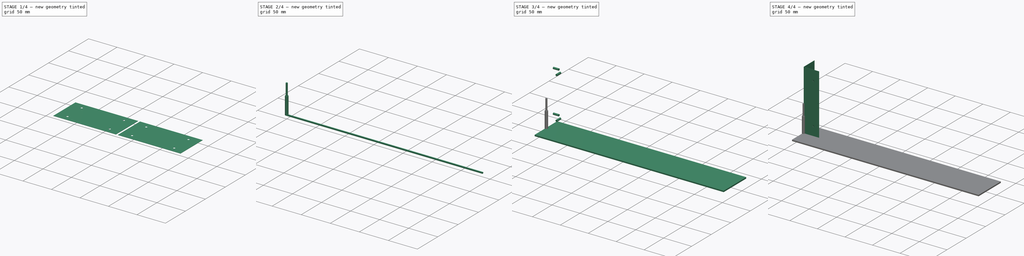
[diagram: build sequence overview — one tinted view per stage of 4, left to right]
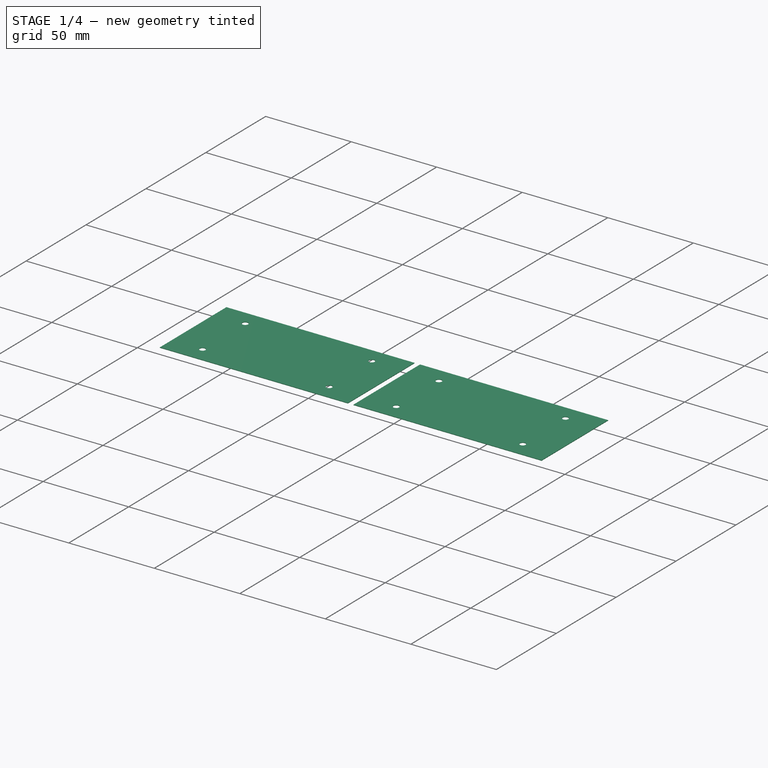
[diagram: stage 1 of 4 — iso view after this stage's code; geometry added in this stage tinted green]
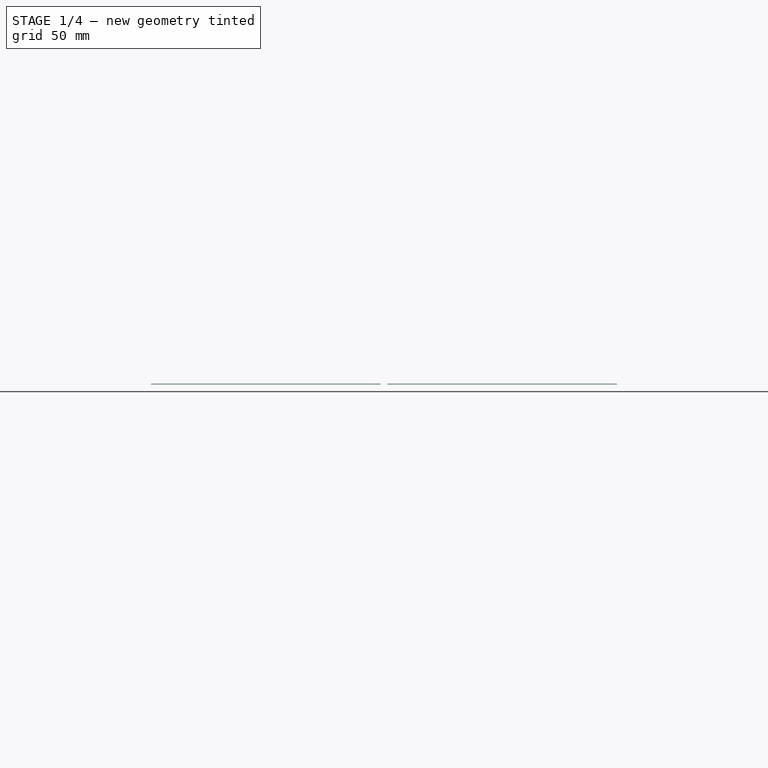
[diagram: stage 1 of 4 — front view after this stage's code; geometry added in this stage tinted green]
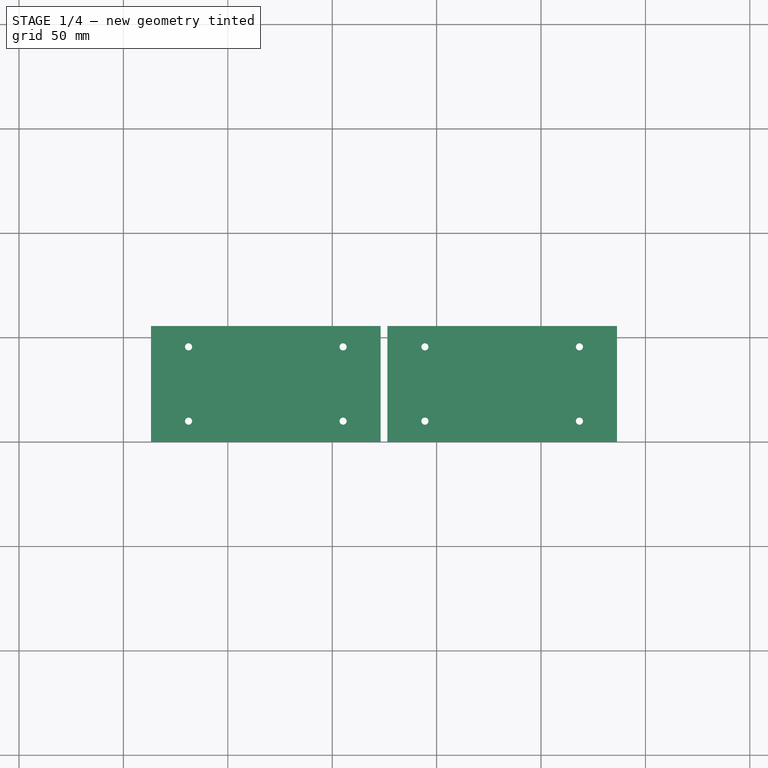
[diagram: stage 1 of 4 — top view after this stage's code; geometry added in this stage tinted green]
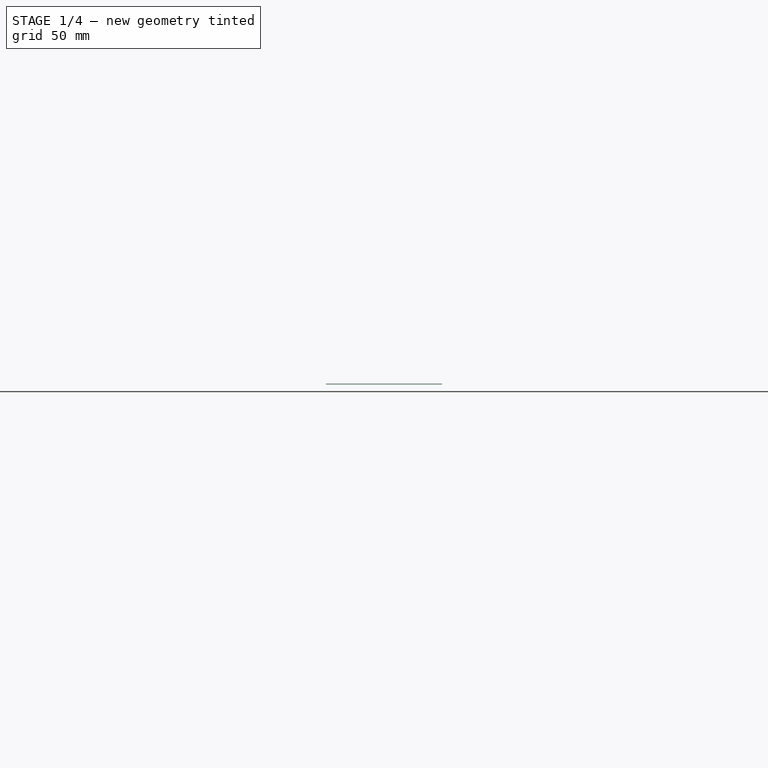
[diagram: stage 1 of 4 — right view after this stage's code; geometry added in this stage tinted green]
FCSTD DOCUMENT  (FreeCAD 0.22R38622 (Git))
Label: stillage_corner
License: All rights reserved
LicenseURL: http://en.wikipedia.org/wiki/All_rights_reserved
objects: Part::FeaturePython×11, Path::FeaturePython×7, App::DocumentObjectGroup×7, Part::Part2DObjectPython×4, Sketcher::SketchObject×2, PartDesign::Body×2, App::FeaturePython×2, PartDesign::SubShapeBinder×1, PartDesign::FeaturePython×1, Part::Cylinder×1, Part::MultiFuse×1, PartDesign::Boolean×1, Part::Feature×1, PartDesign::FeatureBase×1
note: 33 computed .brp shape members not serialized (recipe doc carries the construction recipe); baked Part::Feature solids carry a one-line shape summary decoded from their .brp

FEATURE [Path::FeaturePython] TC__Default_Tool001  label="TC: Default Tool001"  # Path/CAM operation (typed FeaturePython)
  HorizFeed = 35
  HorizRapid = 0
  SpindleDir = 0
  SpindleSpeed = 18000
  Tool = -> ToolBit001
  ToolNumber = 1
  VertFeed = 16.6667
  VertRapid = 0
  expr: HorizRapid = SetupSheet001.HorizRapid
  expr: VertRapid = SetupSheet001.VertRapid
FEATURE [App::DocumentObjectGroup] Tools001
  Group = -> [TC__Default_Tool001]
FEATURE [Part::Feature] Unfold
  Placement = pos=(0,0,0) rot=(0.57735,0.57735,0.57735;2.0944rad)
  shape: bbox 110 x 55.59 x 0.3 mm, 10 faces (baked)
FEATURE [PartDesign::FeatureBase] BaseFeature
  BaseFeature = -> Unfold
  Placement = pos=(0,0,0) rot=(0.57735,0.57735,0.57735;2.0944rad)
  Suppressed = false
  expr: BaseFeature = <<Unfold>>._self
  expr: Placement = .BaseFeature.Placement
FEATURE [Part::FeaturePython] Clone001  label="Model-Body003"  # Draft clone (typed FeaturePython)
  AttacherType = Attacher::AttachEngine3D
  Fuse = false
  Objects = -> [Body002]
  PathResource = Model
  Placement = pos=(113.2,27.5927,-2.4e-15) rot=(0,0,1;0rad)
  Scale = (1,1,1)
FEATURE [Part::FeaturePython] Clone002  label="Model-Body004"  # Draft clone (typed FeaturePython)
  AttacherType = Attacher::AttachEngine3D
  Fuse = false
  Objects = -> [Body002]
  PathResource = Model
  Placement = pos=(226.4,27.5927,-2.4e-15) rot=(0,0,1;0rad)
  Scale = (1,1,1)
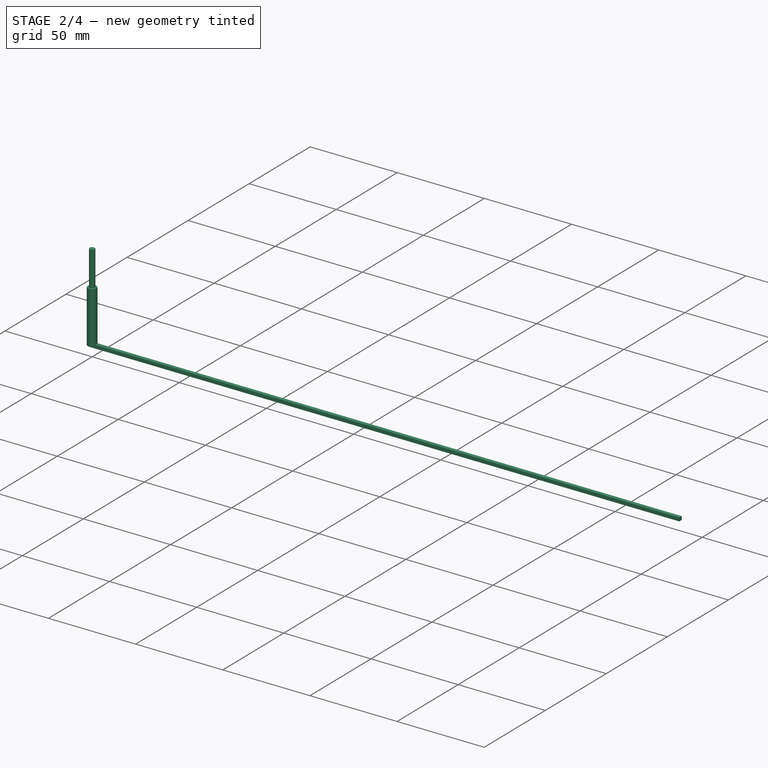
[diagram: stage 2 of 4 — iso view after this stage's code; geometry added in this stage tinted green]
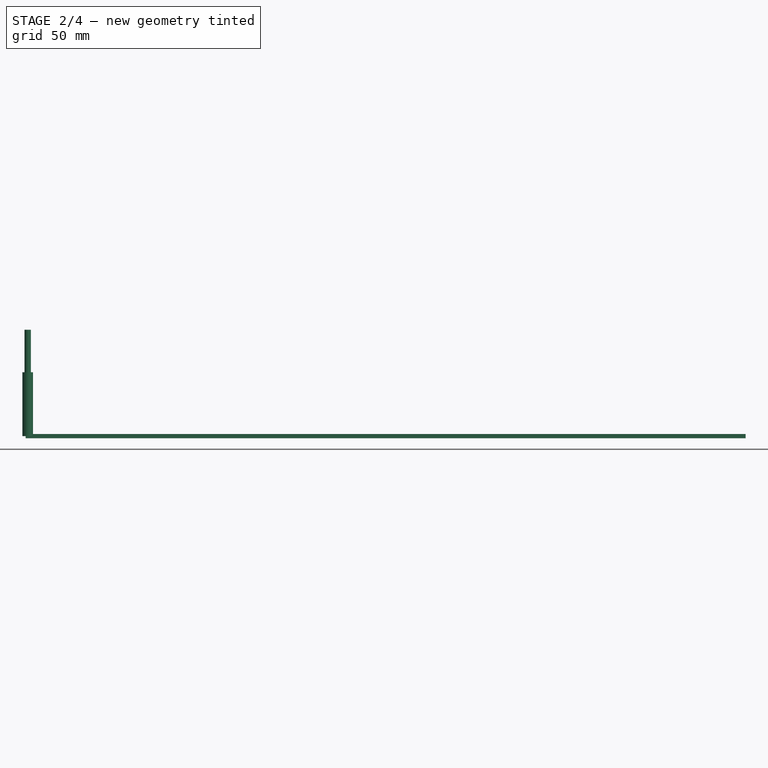
[diagram: stage 2 of 4 — front view after this stage's code; geometry added in this stage tinted green]
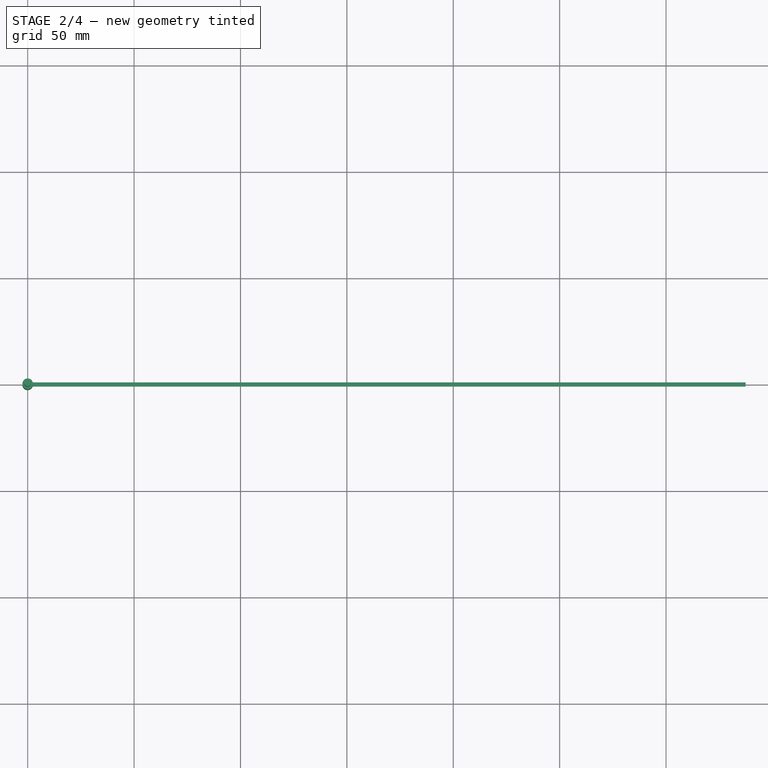
[diagram: stage 2 of 4 — top view after this stage's code; geometry added in this stage tinted green]
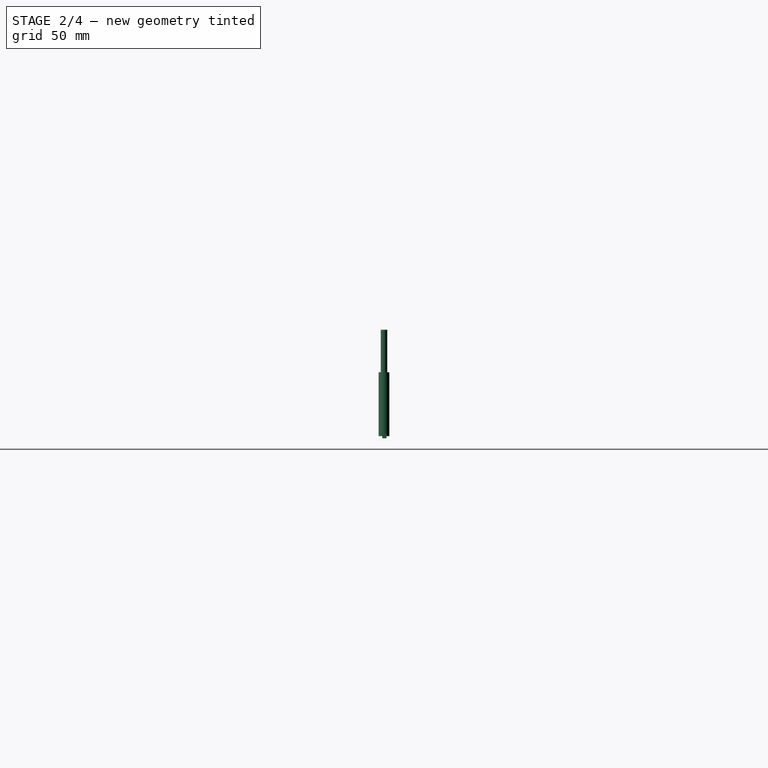
[diagram: stage 2 of 4 — right view after this stage's code; geometry added in this stage tinted green]
FEATURE [Path::FeaturePython] TC__Default_Tool  label="Tool 3,175 1Flute"  # Path/CAM operation (typed FeaturePython)
  HorizFeed = 51.6667
  HorizRapid = 0
  SpindleDir = 0
  SpindleSpeed = 18000
  Tool = -> ToolBit
  ToolNumber = 1
  VertFeed = 16.6667
  VertRapid = 0
  expr: HorizRapid = SetupSheet.HorizRapid
  expr: VertRapid = SetupSheet.VertRapid
FEATURE [App::DocumentObjectGroup] Tools
  Group = -> [TC__Default_Tool]
FEATURE [App::FeaturePython] SetupSheet001  # Path/CAM operation (typed FeaturePython)
  ClearanceHeightExpression = OpStockZMax+SetupSheet001.ClearanceHeightOffset
  ClearanceHeightOffset = 15
  CoolantMode = 0
  CoolantModes = None | Flood | Mist
  FinalDepthExpression = 0,5 mm
  HorizRapid = 0
  SafeHeightExpression = SetupSheet001.SafeHeightOffset
  SafeHeightOffset = 3
  StartDepthExpression = 3 mm
  StepDownExpression = 10 mm
  VertRapid = 0
FEATURE [Part::FeaturePython] ToolBit001  label="Endmill001"  # Path/CAM toolbit (typed FeaturePython)
  BitPropertyNames = Chipload | CuttingEdgeHeight | Diameter | Flutes | Length | Material | ShankDiameter | SpindleDirection
  BitShape = <path>
  Chipload = 0
  CuttingEdgeHeight = 30
  Diameter = 5
  Flutes = 0
  Length = 50
  Material = 0
  ShankDiameter = 3
  ShapeName = endmill
  SpindleDirection = 0
FEATURE [PartDesign::Body] Body002
  AllowCompound = false
  Group = -> [BaseFeature]
  Origin = -> Origin002
  Tip = -> BaseFeature
FEATURE [Part::FeaturePython] Clone  label="Model-Body002"  # Draft clone (typed FeaturePython)
  AttacherType = Attacher::AttachEngine3D
  Fuse = false
  Objects = -> [Body002]
  PathResource = Model
  Placement = pos=(0,27.5927,-2.4e-15) rot=(0,0,1;0rad)
  Scale = (1,1,1)
FEATURE [Path::FeaturePython] Profile  # Path/CAM operation (typed FeaturePython)
  Active = true
  AreaParams:
    Tolerance = 1e-07
    FitArcs = True
    Simplify = False
    CleanDistance = 0.0
    Accuracy = 0.01
    Unit = 1.0
    MinArcPoints = 4
    MaxArcPoints = 100
    ClipperScale = 10000000.0
    Fill = 0
    Coplanar = 0
    Reorient = True
    Outline = False
    Explode = False
    OpenMode = 0
    Deflection = 0.01
    SubjectFill = 0
    ClipFill = 0
    Offset = -1.5875
    ExtraPass = 0
    Stepover = 0.0
    LastStepover = 0.0
    JoinType = 0
    EndType = 0
    MiterLimit = 2.0
    RoundPrecision = 0.0
    PocketMode = 0
    ToolRadius = 1.0
    PocketExtraOffset = 0.0
    PocketStepover = 0.0
    PocketLastStepover = 0.0
    FromCenter = False
    Angle = 45.0
    AngleShift = 0.0
    Shift = 0.0
    Thicken = False
    SectionCount = -1
    Stepdown = 1.0
    SectionOffset = 0.0
    SectionTolerance = 1e-06
    SectionMode = 2
    Project = False
  Base = -> [Clone,Clone001,Clone002]
  ClearanceHeight = 16.3
  CoolantMode = 0
  CycleTime = 00:00:34
  Direction = 1
  FinalDepth = -4e-16
  HandleMultipleFeatures = 0
  JoinType = 0
  MiterLimit = 0.1
  OffsetExtra = 0
  OpFinalDepth = -4e-16
  OpStartDepth = 1.3
  OpStockZMax = 1.3
  OpStockZMin = -1
  OpToolDiameter = 3.175
  PathParams = {'orientation': 1, 'feedrate': 51.66666666666666, 'feedrate_v': 16.66666666666667, 'verbose': True, 'resume_height': 4.300000000000043, 'retraction': 16.300000000000043, 'return_end': True, 'preamble': False, 'start': Vector (318.29624454698995, 45.59255356659663, 16.300000000000043)}
  SafeHeight = 4.3
  Side = 0
  SplitArcs = false
  StartDepth = 1.3
  StartPoint = (0,0,0)
  StepDown = 3.175
  ToolController = -> TC__Default_Tool
  UseComp = true
  UseStartPoint = false
  processCircles = true
  processHoles = false
  processPerimeter = false
  expr: ClearanceHeight = OpStockZMax + SetupSheet.ClearanceHeightOffset
  expr: FinalDepth = OpFinalDepth
  expr: SafeHeight = OpStockZMax + SetupSheet.SafeHeightOffset
  expr: StartDepth = OpStartDepth
  expr: StepDown = OpToolDiameter
FEATURE [Path::FeaturePython] Profile001  # Path/CAM operation (typed FeaturePython)
  Active = true
  AreaParams:
    Tolerance = 1e-07
    FitArcs = True
    Simplify = False
    CleanDistance = 0.0
    Accuracy = 0.01
    Unit = 1.0
    MinArcPoints = 4
    MaxArcPoints = 100
    ClipperScale = 10000000.0
    Fill = 0
    Coplanar = 0
    Reorient = True
    Outline = False
    Explode = False
    OpenMode = 0
    Deflection = 0.01
    SubjectFill = 0
    ClipFill = 0
    Offset = 1.5875
    ExtraPass = 0
    Stepover = 0.0
    LastStepover = 0.0
    JoinType = 0
    EndType = 0
    MiterLimit = 2.0
    RoundPrecision = 0.0
    PocketMode = 0
    ToolRadius = 1.0
    PocketExtraOffset = 0.0
    PocketStepover = 0.0
    PocketLastStepover = 0.0
    FromCenter = False
    Angle = 45.0
    AngleShift = 0.0
    Shift = 0.0
    Thicken = False
    SectionCount = -1
    Stepdown = 1.0
    SectionOffset = 0.0
    SectionTolerance = 1e-06
    SectionMode = 2
    Project = False
  Base = -> [Clone,Clone001,Clone002]
  ClearanceHeight = 16.3
  CoolantMode = 0
  CycleTime = 00:00:31
  Direction = 1
  FinalDepth = -2.8e-15
  HandleMultipleFeatures = 0
  JoinType = 0
  MiterLimit = 0.1
  OffsetExtra = 0
  OpFinalDepth = -2.8e-15
  OpStartDepth = 1.3
  OpStockZMax = 1.3
  OpStockZMin = -1
  OpToolDiameter = 3.175
  PathParams = {'orientation': 0, 'feedrate': 51.66666666666666, 'feedrate_v': 16.66666666666667, 'verbose': True, 'resume_height': 4.300000000000043, 'retraction': 16.300000000000043, 'return_end': True, 'preamble': False, 'start': Vector (111.80334689894978, 56.34736192046903, 16.300000000000043)}
  SafeHeight = 4.3
  Side = 0
  SplitArcs = false
  StartDepth = 1.3
  StartPoint = (0,0,0)
  StepDown = 3.175
  ToolController = -> TC__Default_Tool
  UseComp = true
  UseStartPoint = false
  processCircles = false
  processHoles = false
  processPerimeter = true
  expr: Base = <<Profile>>.Base
  expr: ClearanceHeight = OpStockZMax + SetupSheet.ClearanceHeightOffset
  expr: FinalDepth = OpFinalDepth
  expr: SafeHeight = OpStockZMax + SetupSheet.SafeHeightOffset
  expr: StartDepth = OpStartDepth
  expr: StepDown = OpToolDiameter
FEATURE [App::DocumentObjectGroup] Operations
  Group = -> [Profile,Profile001]
FEATURE [Path::FeaturePython] Job  # Path/CAM operation (typed FeaturePython)
  CycleTime = 00:01:05
  Fixtures = G54
  GeometryTolerance = 0.01
  JobType = 0
  Model = -> Model
  Operations = -> Operations
  OrderOutputBy = 2
  PostProcessor = 22
  PostProcessorArgs = --axis-modal --modal
  PostProcessorOutputFile = <path>/%j-%S.tap
  SetupSheet = -> SetupSheet
  SplitOutput = true
  Stock = -> Stock
  Tools = -> Tools
FEATURE [Sketcher::SketchObject] Unfold_Sketch_bends
  ArcFitTolerance = 1e-06
  FullyConstrained = false
  MakeInternals = false
  sketch-geometry (1):
    g0: LineSegment StartX=110 StartY=0.20365 StartZ=0 EndX=0 EndY=0.20365 EndZ=0
FEATURE [Part::Part2DObjectPython] Clone2D  label="Unfold_Sketch_bends (2D)"  # Draft 2D object (typed FeaturePython)
  Fuse = false
  Objects = -> [Unfold_Sketch_bends]
  Scale = (1,1,1)
  expr: Objects = <<Unfold_Sketch_bends>>._self
FEATURE [Part::Part2DObjectPython] Clone2D001  label="Model-Unfold_Sketch_bends (2D)"  # Draft 2D object (typed FeaturePython)
  Fuse = false
  Objects = -> [Clone2D]
  PathResource = Model
  Placement = pos=(0,27.5927,-2.4e-15) rot=(0,0,1;0rad)
  Scale = (1,1,1)
  expr: Placement = <<Model-Body002>>.Placement
FEATURE [Part::Part2DObjectPython] Clone2D002  label="Model-Unfold_Sketch_bends (2D)001"  # Draft 2D object (typed FeaturePython)
  Fuse = false
  Objects = -> [Clone2D]
  PathResource = Model
  Placement = pos=(113.2,27.5927,-2.4e-15) rot=(0,0,1;0rad)
  Scale = (1,1,1)
  expr: Placement = <<Model-Body003>>.Placement
FEATURE [Part::Part2DObjectPython] Clone2D003  label="Model-Unfold_Sketch_bends (2D)002"  # Draft 2D object (typed FeaturePython)
  Fuse = false
  Objects = -> [Clone2D]
  PathResource = Model
  Placement = pos=(226.4,27.5927,-2.4e-15) rot=(0,0,1;0rad)
  Scale = (1,1,1)
  expr: Placement = <<Model-Body004>>.Placement
FEATURE [App::DocumentObjectGroup] Model001
  Group = -> [Clone2D001,Clone2D002,Clone2D003]
FEATURE [Part::FeaturePython] Stock001  # WARN: FeaturePython — macro-defined, semantics opaque (R4)
  Base = -> Model001
  ExtXneg = 1
  ExtXpos = 1
  ExtYneg = 1
  ExtYpos = 1
  ExtZneg = 1
  ExtZpos = 1
  Placement = pos=(0,0.20365,0) rot=(0,0,1;0rad)
  StockType = FromBase
FEATURE [Path::FeaturePython] Engrave  # Path/CAM operation (typed FeaturePython)
  Active = true
  BaseShapes = -> [Clone2D001,Clone2D002,Clone2D003]
  ClearanceHeight = 15
  CoolantMode = 0
  CycleTime = 00:00:31
  FinalDepth = 0.5
  OpFinalDepth = -5
  OpStartDepth = -2.4e-15
  OpStockZMax = 1
  OpStockZMin = -1
  OpToolDiameter = 5
  SafeHeight = 4
  StartDepth = -2.4e-15
  StartVertex = 0
  StepDown = 5
  ToolController = -> TC__Default_Tool001
  expr: BaseShapes = <<Model001>>.Group
  expr: FinalDepth = 0.5 mm
  expr: SafeHeight = OpStockZMax + SetupSheet001.SafeHeightOffset
  expr: StartDepth = OpStartDepth
  expr: StepDown = OpToolDiameter
FEATURE [App::DocumentObjectGroup] Operations001
  Group = -> [Engrave]
FEATURE [Path::FeaturePython] Job001  # Path/CAM operation (typed FeaturePython)
  CycleTime = 00:00:31
  Fixtures = G54
  GeometryTolerance = 0.01
  JobType = 0
  Model = -> Model001
  Operations = -> Operations001
  OrderOutputBy = 0
  PostProcessor = 22
  PostProcessorArgs = --axis-modal --modal
  PostProcessorOutputFile = <path>/%j.tap
  SetupSheet = -> SetupSheet001
  SplitOutput = false
  Stock = -> Stock001
  Tools = -> Tools001
FEATURE [App::DocumentObjectGroup] Group
  Group = -> [Body002,Clone2D,Unfold,Unfold_Sketch_bends]
note: 4 file-system paths scrubbed to <path> (originals preserved in the JSON sidecar)
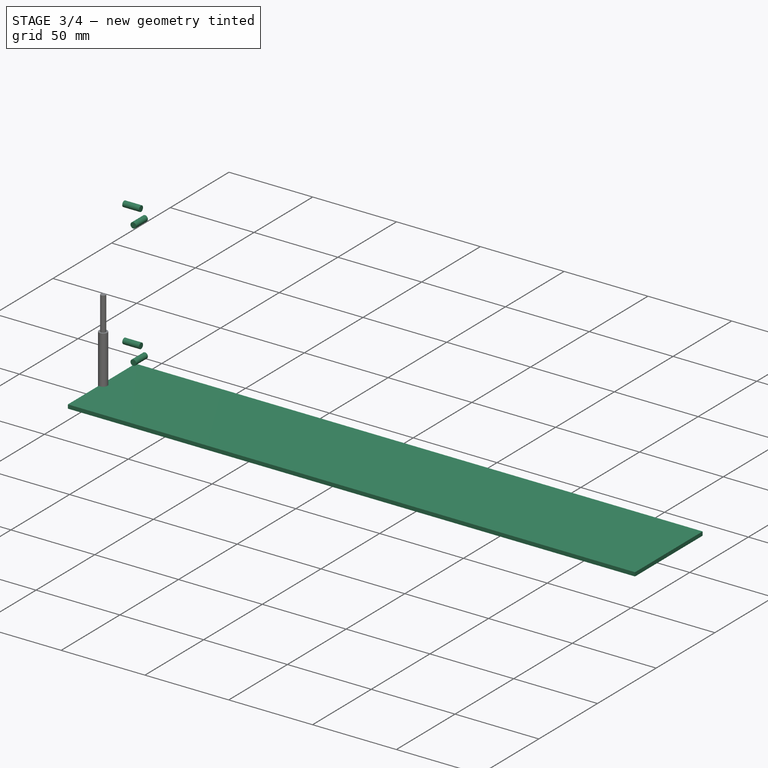
[diagram: stage 3 of 4 — iso view after this stage's code; geometry added in this stage tinted green]
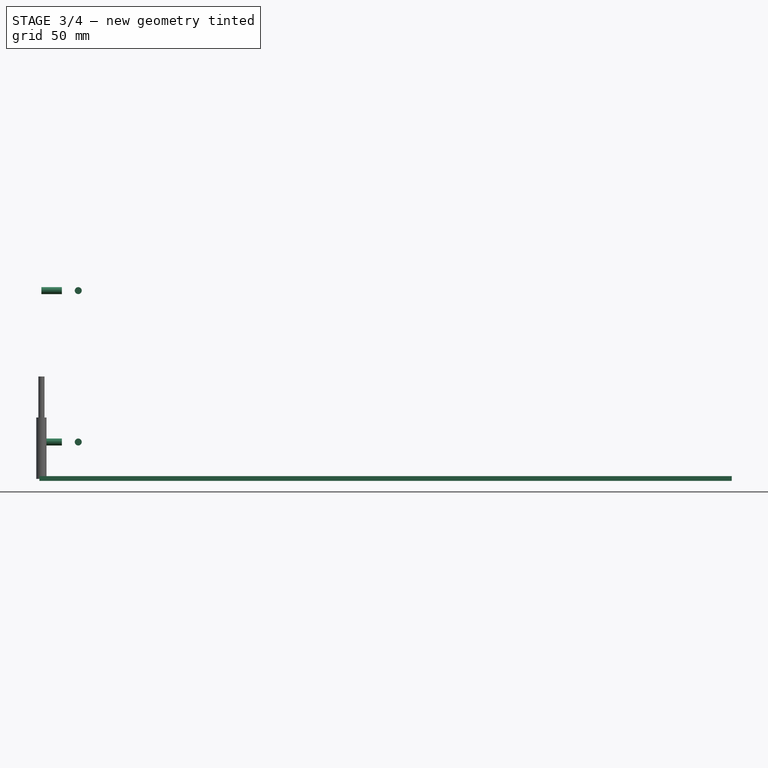
[diagram: stage 3 of 4 — front view after this stage's code; geometry added in this stage tinted green]
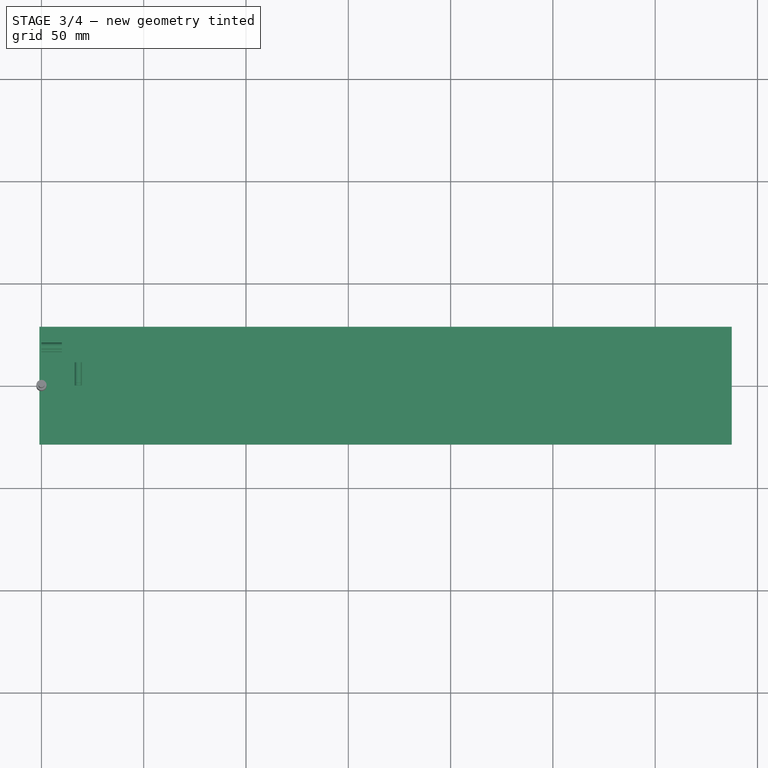
[diagram: stage 3 of 4 — top view after this stage's code; geometry added in this stage tinted green]
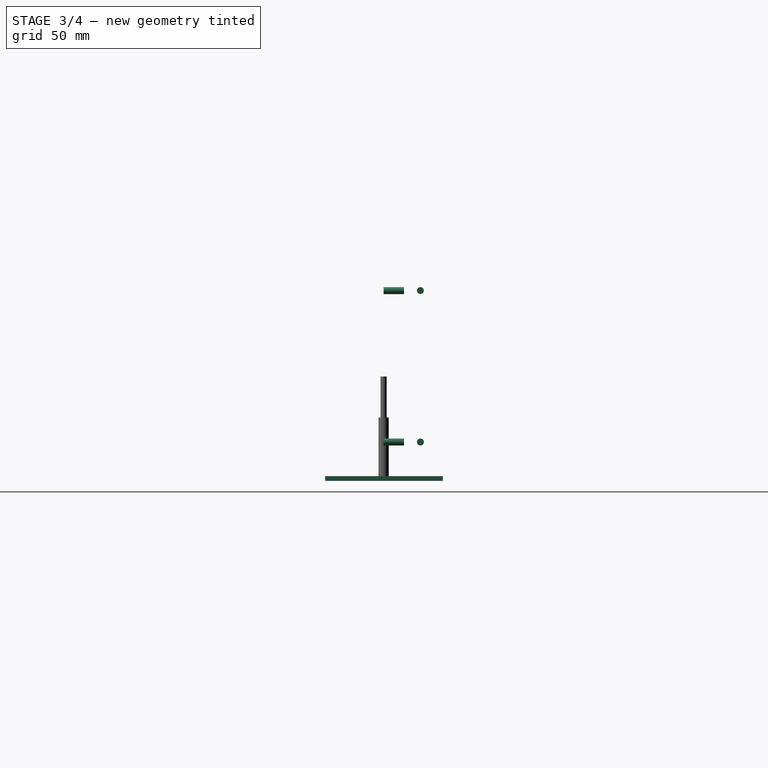
[diagram: stage 3 of 4 — right view after this stage's code; geometry added in this stage tinted green]
FEATURE [Part::FeaturePython] LinearArray  # WARN: FeaturePython — macro-defined, semantics opaque (R4)
  Alignment = 0
  CellStart = A1
  Count = 2
  Dir = (1,0,0)
  DirIsDriven = true
  DistributionLaw = 0
  DrivenProperty = 1
  EndInclusive = true
  ExposePlacement = false
  GeneratorMode = 0
  MarkerShape = 1
  MarkerSize = 10
  NumElements = 2
  OrientMode = 1
  Placement = pos=(18,0,0) rot=(-0.57735,-0.57735,-0.57735;2.0944rad)
  Point = (0,0,0)
  PointIsDriven = true
  Reverse = false
  SpanEnd = 92
  SpanStart = 18
  Step = 74
  Type = lattice2LinearArray.LinearArray
  VSGVersion = 1
  Values = 18.0 | 92.0
  ValuesSource = 2
  isLattice = 1
  expr: SpanEnd = 110 mm - SpanStart
FEATURE [Part::FeaturePython] Mirror  label="Mirror of LinearArray"  # WARN: FeaturePython — macro-defined, semantics opaque (R4)
  ExposePlacement = false
  FlipX = true
  FlipY = false
  FlipZ = true
  MarkerShape = 1
  MarkerSize = 10
  NumElements = 2
  Object = -> LinearArray
  ObjectTraversal = 0
  PivotPlacement = pos=(0,0,55) rot=(0,0,1;-0.785398rad)
  Type = lattice2Mirror.LatticeMirror
  isLattice = 1
FEATURE [Part::Cylinder] Cylinder
  Angle = 360
  AttacherType = Attacher::AttachEngine3D
  FirstAngle = 0
  Height = 10
  Radius = 1.7
  SecondAngle = 0
FEATURE [Part::FeaturePython] Join  # WARN: FeaturePython — macro-defined, semantics opaque (R4)
  ExposePlacement = false
  Interleave = false
  Links = -> [LinearArray,Mirror]
  MarkerShape = 1
  MarkerSize = 0
  NumElements = 4
  Type = lattice2JoinArrays.JoinArrays
  isLattice = 1
FEATURE [Part::FeaturePython] Populate  label="Populate Join with Cylinder"  # WARN: FeaturePython — macro-defined, semantics opaque (R4)
  Copying = 0
  ExposePlacement = false
  MarkerShape = 1
  MarkerSize = 0
  NumElements = 0
  Object = -> Cylinder
  OutputCompounding = 1
  PlacementsTo = -> Join
  Referencing = 0
  Type = lattice2PopulateCopies.LatticePopulateCopies
  isLattice = 0
FEATURE [PartDesign::Body] Body
  AllowCompound = false
  Group = -> [Binder,BaseBend,Boolean]
  Origin = -> Origin
  Tip = -> Boolean
FEATURE [App::FeaturePython] SetupSheet  # Path/CAM operation (typed FeaturePython)
  ClearanceHeightExpression = SetupSheet.ClearanceHeightOffset
  ClearanceHeightOffset = 15
  CoolantMode = 0
  CoolantModes = None | Flood | Mist
  FinalDepthExpression = -0,05 mm
  HorizRapid = 0
  ProfileDirection = 1
  ProfileSide = 0
  SafeHeightExpression = SetupSheet.SafeHeightOffset
  SafeHeightOffset = 3
  StartDepthExpression = 3 mm
  StepDownExpression = 10 mm
  VertRapid = 0
FEATURE [Part::FeaturePython] ToolBit  label="Endmill"  # Path/CAM toolbit (typed FeaturePython)
  BitPropertyNames = Chipload | CuttingEdgeHeight | Diameter | Flutes | Length | Material | ShankDiameter | SpindleDirection
  BitShape = <path>
  Chipload = 0
  CuttingEdgeHeight = 10
  Diameter = 3.175
  Flutes = 0
  Length = 30
  Material = 0
  ShankDiameter = 3.175
  ShapeName = endmill
  SpindleDirection = 1
FEATURE [App::DocumentObjectGroup] Model
  Group = -> [Clone,Clone001,Clone002]
FEATURE [Part::FeaturePython] Stock  # WARN: FeaturePython — macro-defined, semantics opaque (R4)
  Base = -> Model
  ExtXneg = 1
  ExtXpos = 1
  ExtYneg = 1
  ExtYpos = 1
  ExtZneg = 1
  ExtZpos = 1
  Placement = pos=(-6.2e-15,-27.5927,-4e-16) rot=(0,0,1;0rad)
  StockType = FromBase
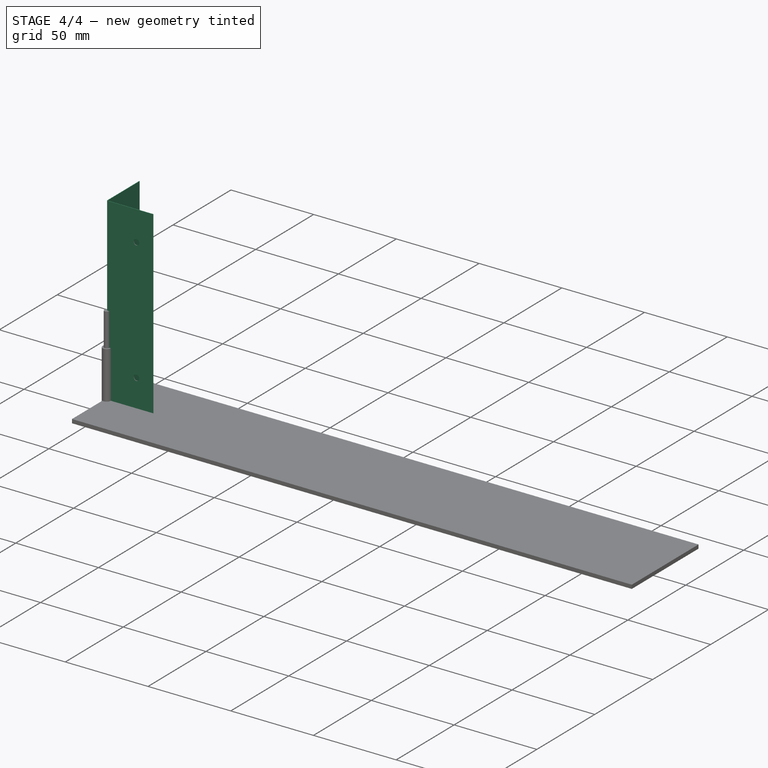
[diagram: stage 4 of 4 — iso view after this stage's code; geometry added in this stage tinted green]
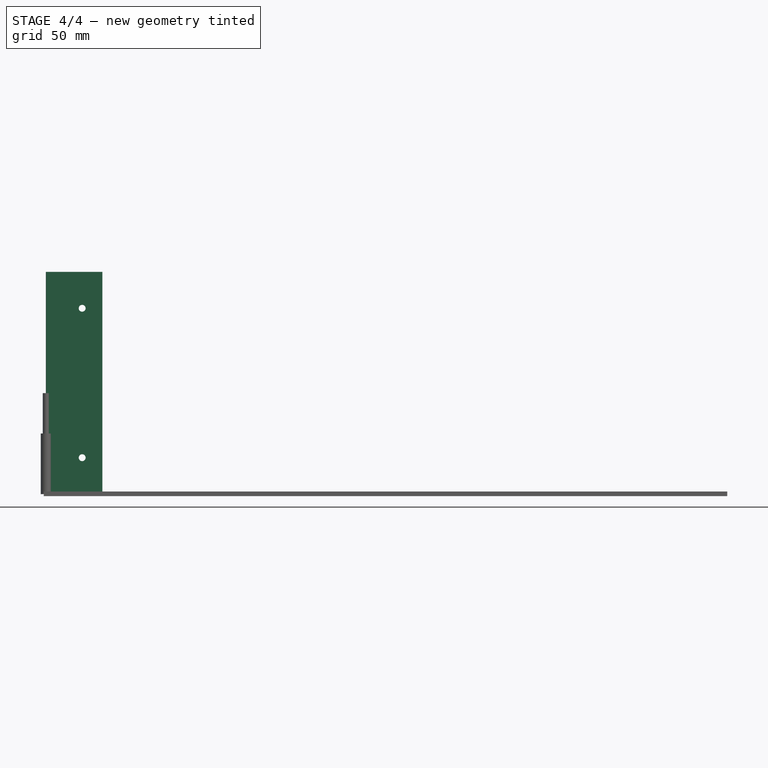
[diagram: stage 4 of 4 — front view after this stage's code; geometry added in this stage tinted green]
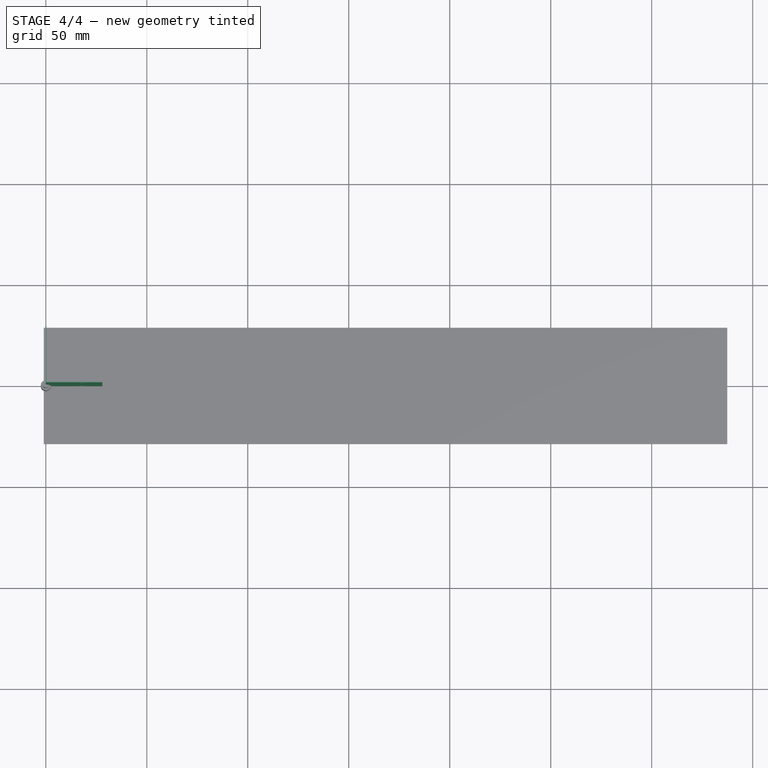
[diagram: stage 4 of 4 — top view after this stage's code; geometry added in this stage tinted green]
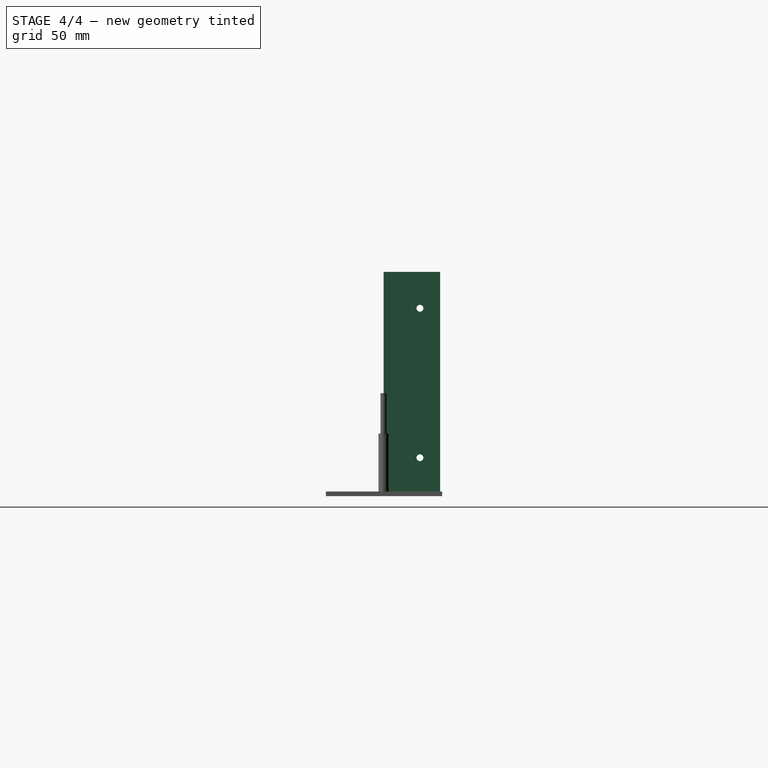
[diagram: stage 4 of 4 — right view after this stage's code; geometry added in this stage tinted green]
FEATURE [Sketcher::SketchObject] Sketch
  ArcFitTolerance = 1e-06
  FullyConstrained = true
  MakeInternals = false
  sketch-geometry (2):
    g0: LineSegment StartX=0 StartY=28 StartZ=0 EndX=0 EndY=0 EndZ=0
    g1: LineSegment StartX=0 StartY=0 StartZ=0 EndX=28 EndY=0 EndZ=0
  constraints (6):
    c: PointOnObject(g0,g-2)
    c: Coincident(g0,g-1)
    c: Coincident(g0,g1)
    c: Horizontal(g1)
    c: Equal(g1,g0)
    c: DistanceX(g1,g1) = 28
FEATURE [PartDesign::SubShapeBinder] Binder
  BindCopyOnChange = 0
  BindMode = 0
  ClaimChildren = true
  Context = -> Body [Binder.]
  Fuse = false
  MakeFace = true
  OffsetFill = false
  OffsetIntersection = false
  OffsetJoinType = 0
  OffsetOpenResult = false
  PartialLoad = false
  Relative = false
  Support = -> [Sketch]
  _Version = 2
FEATURE [PartDesign::FeaturePython] BaseBend  # WARN: FeaturePython — macro-defined, semantics opaque (R4)
  BendSide = 1
  BendSketch = -> Binder
  MidPlane = false
  Reverse = false
  Suppressed = false
  length = 110
  radius = 0.1
  thickness = 0.3
FEATURE [Part::MultiFuse] Fusion
  Shapes = -> [Populate]
FEATURE [PartDesign::Boolean] Boolean
  BaseFeature = -> BaseBend
  Group = -> [Fusion]
  Suppressed = false
  Type = 1
  UsePlacement = true
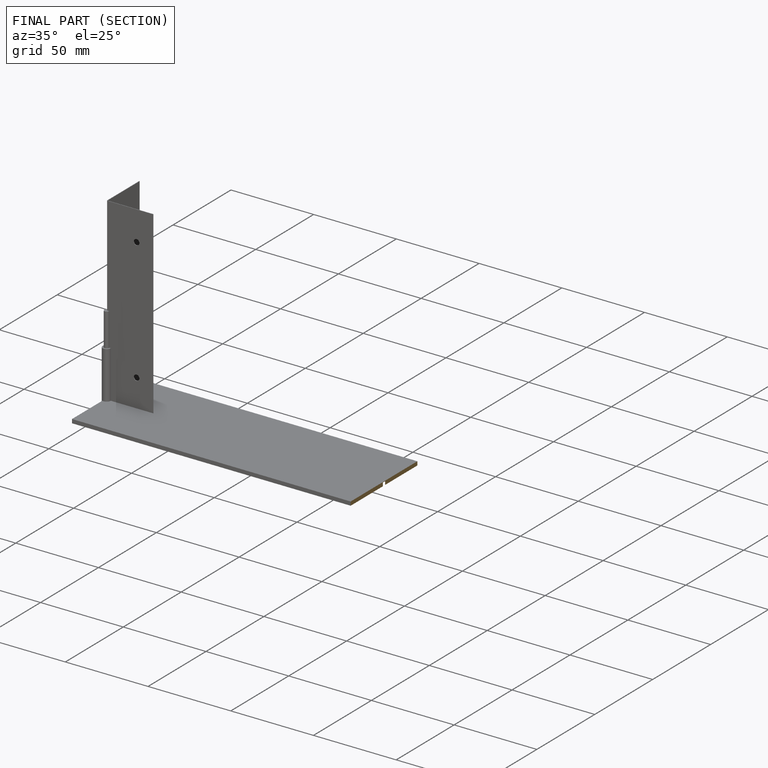
[diagram: finished part — half-section view (interior)]
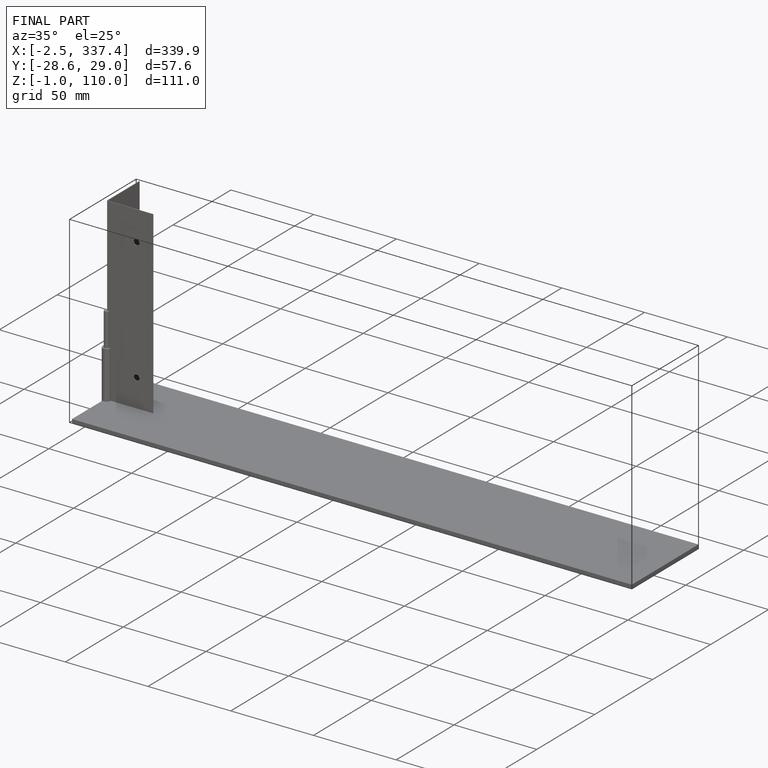
[diagram: finished part — iso view with bounding-box wireframe]
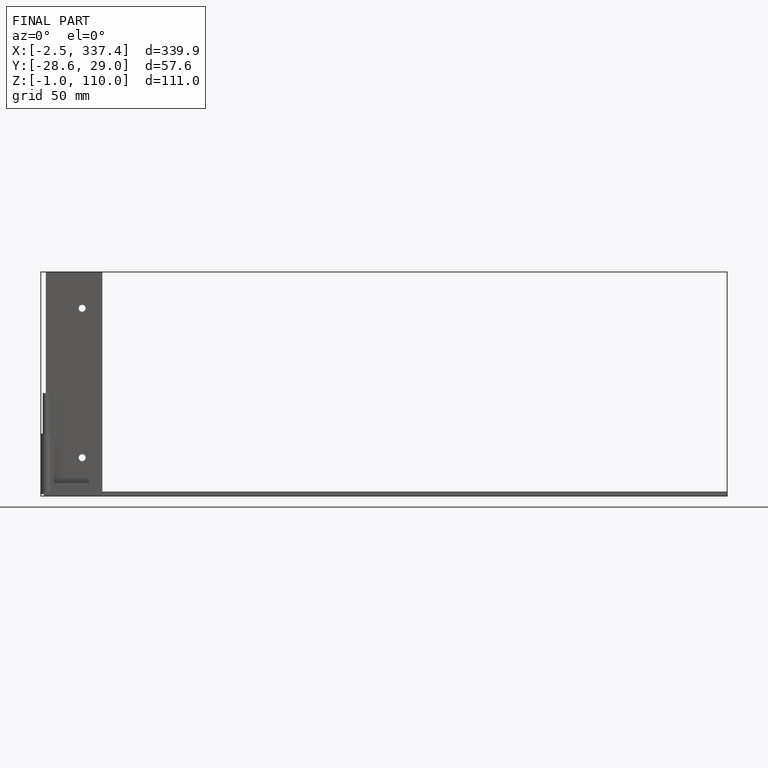
[diagram: finished part — front view with bounding-box wireframe]
